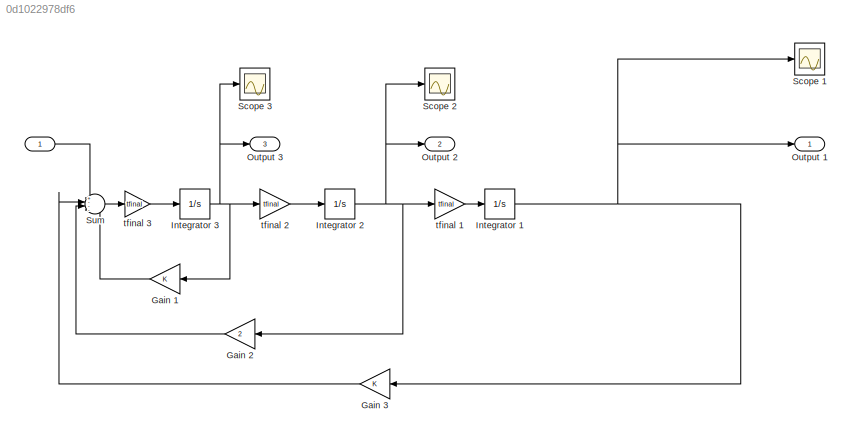
MODEL slx_0d1022978df6
KIND model
CONFIG AbsTol = auto
CONFIG EnableMultiTasking = off
CONFIG FixedStep = 0.025
CONFIG MaxStep = auto
CONFIG MinStep = auto
CONFIG RelTol = 1e-3
CONFIG SampleTimeConstraint = Unconstrained
CONFIG Solver = FixedStepAuto
CONFIG SolverName = FixedStepAuto
CONFIG StartTime = 0.0
CONFIG StopTime = 10.0
BLOCK [Inport]  
  IconDisplay = Port number
BLOCK [Integrator]  Integrator 3
  InitialCondition = initialstate3
  Ports = [1, 1]
BLOCK [Gain] Gain 1
  OutDataTypeStr = Inherit: Inherit via internal rule
  ParamDataTypeStr = Inherit: Inherit via internal rule
  SaturateOnIntegerOverflow = off
BLOCK [Gain] Gain 2
  Gain = 2
  OutDataTypeStr = Inherit: Inherit via internal rule
  ParamDataTypeStr = Inherit: Inherit via internal rule
  SaturateOnIntegerOverflow = off
BLOCK [Gain] Gain 3
  OutDataTypeStr = Inherit: Inherit via internal rule
  ParamDataTypeStr = Inherit: Inherit via internal rule
  SaturateOnIntegerOverflow = off
BLOCK [Integrator] Integrator 1
  InitialCondition = initialstate1
  LowerSaturationLimit = -1
  Ports = [1, 1]
  UpperSaturationLimit = 1
BLOCK [Integrator] Integrator 2
  InitialCondition = initialstate2
  Ports = [1, 1]
BLOCK [Outport] Output 1
  IconDisplay = Port number
BLOCK [Outport] Output 2
  IconDisplay = Port number
  Port = 2
BLOCK [Outport] Output 3
  IconDisplay = Port number
  Port = 3
BLOCK [Scope] Scope 1
  Floating = off
  NumInputPorts = 1
  Ports = [1]
  ScopeSpecificationString = Simulink.scopes.TimeScopeBlockCfg('CurrentConfiguration', extmgr.ConfigurationSet(extmgr.Configuration('Core','General UI',true),extmgr.Configuration('Core','Source UI',true),extmgr.Configuration('Sources','WiredSimulink',true,'DataLoggingVariableName','ScopeData1'),extmgr.Configuration('Visuals','Time Domain',true,'SerializedDisplays',{struct('MinYLimReal','-0.19066','MaxYLimReal','1.1323','YLabe...<+1365ch>
BLOCK [Scope] Scope 2
  Floating = off
  NumInputPorts = 1
  Ports = [1]
  ScopeSpecificationString = Simulink.scopes.TimeScopeBlockCfg('CurrentConfiguration', extmgr.ConfigurationSet(extmgr.Configuration('Core','General UI',true),extmgr.Configuration('Core','Source UI',true),extmgr.Configuration('Sources','WiredSimulink',true,'DataLoggingVariableName','ScopeData2'),extmgr.Configuration('Visuals','Time Domain',true,'SerializedDisplays',{struct('MinYLimReal','-2.21775','MaxYLimReal','-0.04027','YLa...<+1372ch>
BLOCK [Scope] Scope 3
  Floating = off
  NumInputPorts = 1
  Ports = [1]
  ScopeSpecificationString = Simulink.scopes.TimeScopeBlockCfg('CurrentConfiguration', extmgr.ConfigurationSet(extmgr.Configuration('Core','General UI',true),extmgr.Configuration('Core','Source UI',true),extmgr.Configuration('Sources','WiredSimulink',true),extmgr.Configuration('Visuals','Time Domain',true,'SerializedDisplays',{struct('MinYLimReal','0.04373','MaxYLimReal','3.32847','YLabelReal','','MinYLimMag','0.04373','MaxYL...<+1329ch>
BLOCK [Sum] Sum
  IconShape = round
  InputSameDT = off
  Inputs = +---
  OutDataTypeStr = Inherit: Inherit via internal rule
  Ports = [4, 1]
  SaturateOnIntegerOverflow = off
BLOCK [Gain] tfinal 1 
  Gain = tfinal
  OutDataTypeStr = Inherit: Inherit via internal rule
  ParamDataTypeStr = Inherit: Inherit via internal rule
  SaturateOnIntegerOverflow = off
BLOCK [Gain] tfinal 2
  Gain = tfinal
  OutDataTypeStr = Inherit: Inherit via internal rule
  ParamDataTypeStr = Inherit: Inherit via internal rule
  SaturateOnIntegerOverflow = off
BLOCK [Gain] tfinal 3
  Gain = tfinal
  OutDataTypeStr = Inherit: Inherit via internal rule
  ParamDataTypeStr = Inherit: Inherit via internal rule
  SaturateOnIntegerOverflow = off
LINE  :1 -> Sum:1
NET  Integrator 3:1 -> Gain 1:1, Output 3:1, Scope 3:1, tfinal 2:1
LINE Gain 1:1 -> Sum:4
LINE Gain 2:1 -> Sum:3
LINE Gain 3:1 -> Sum:2
NET Integrator 1:1 -> Gain 3:1, Output 1:1, Scope 1:1
NET Integrator 2:1 -> Gain 2:1, Output 2:1, Scope 2:1, tfinal 1 :1
LINE Sum:1 -> tfinal 3:1
LINE tfinal 1 :1 -> Integrator 1:1
LINE tfinal 2:1 -> Integrator 2:1
LINE tfinal 3:1 ->  Integrator 3:1
note: NET lines group one-source signal fan-out (src -> all destinations, sorted); 1:1 wires keep LINE
